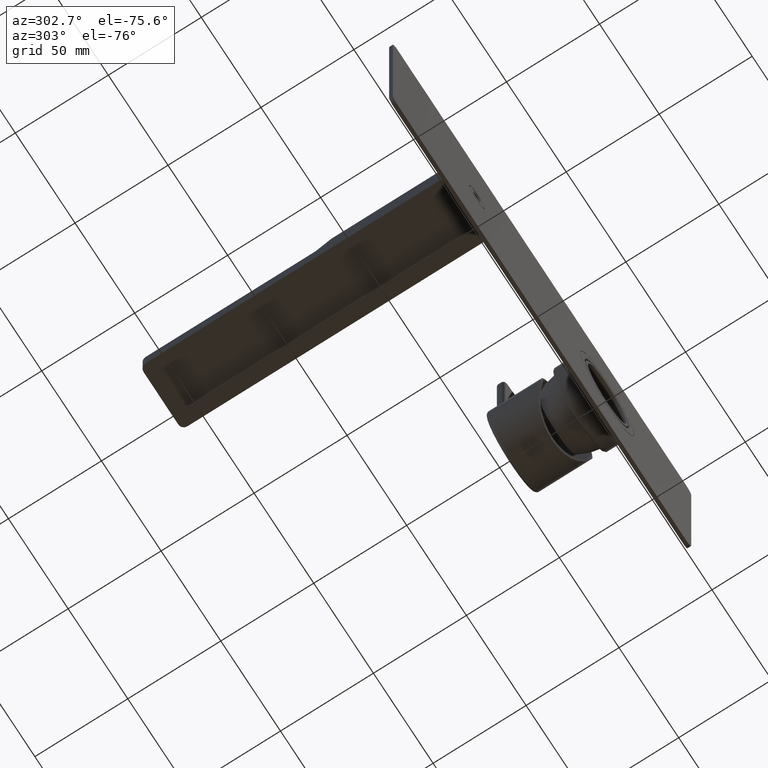
[diagram: clean part render]
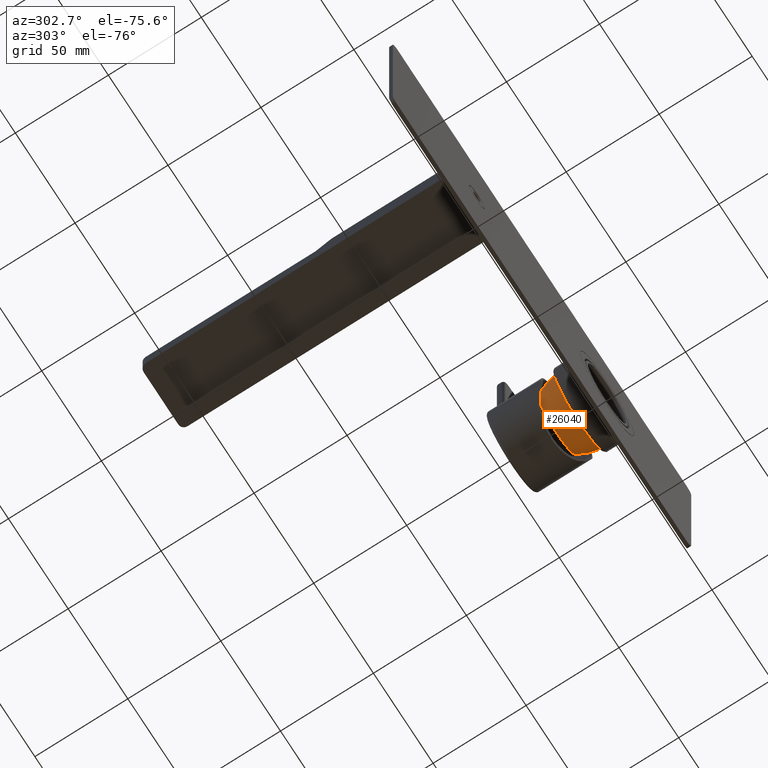
[diagram: same view with one face highlighted and labeled with its STEP entity id]
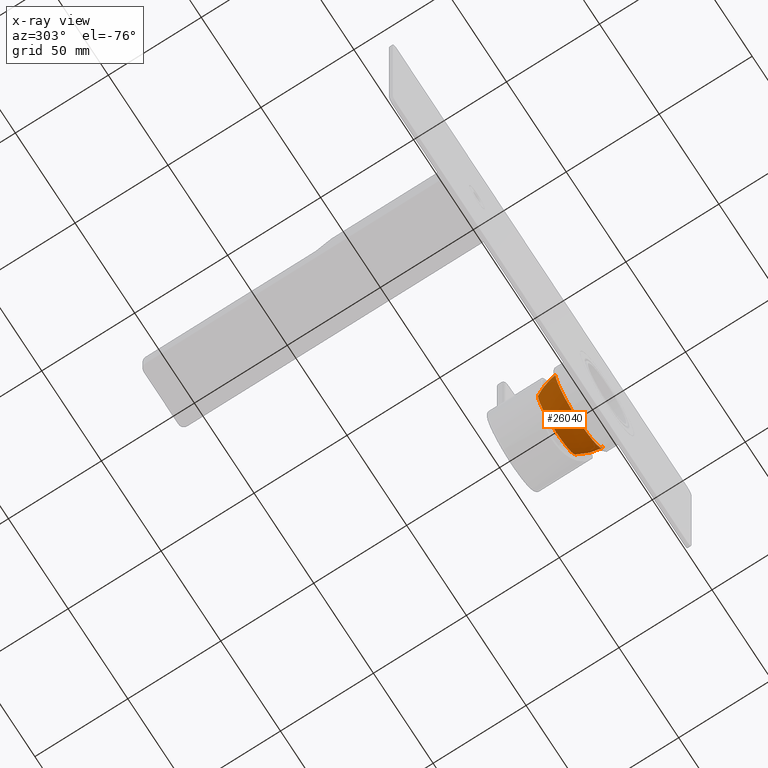
[diagram: x-ray of the same camera — body ghosted, the highlighted face saturated]
A machine part, auxiliary view. The second image highlights one B-rep face of the part: STEP entity #26040.
The next image is the same camera in x-ray: the body ghosted, the highlighted face saturated — about 0% of this face is hidden behind the body in this view.
In plain terms, the highlighted face is a freeform B-spline surface patch.
Its self-contained STEP definition (entity closure, byte-faithful):
#6662=CARTESIAN_POINT('',(1.09E2,6.3E1,0.E0));
#6663=DIRECTION('',(0.E0,-1.E0,0.E0));
#6664=DIRECTION('',(-1.E0,0.E0,0.E0));
#6665=AXIS2_PLACEMENT_3D('',#6662,#6663,#6664);
#6671=CARTESIAN_POINT('',(9.901791193219E1,5.983037517768E1,0.E0));
#6672=DIRECTION('',(0.E0,0.E0,1.E0));
#6673=DIRECTION('',(9.944029355938E-1,1.056541607441E-1,0.E0));
#6674=AXIS2_PLACEMENT_3D('',#6671,#6672,#6673);
#6676=CARTESIAN_POINT('',(1.189820880678E2,5.983037517768E1,0.E0));
#6677=DIRECTION('',(0.E0,0.E0,-1.E0));
#6678=DIRECTION('',(-9.944029355938E-1,1.056541607441E-1,0.E0));
#6679=AXIS2_PLACEMENT_3D('',#6676,#6677,#6678);
#6681=CARTESIAN_POINT('',(1.09E2,7.5E1,0.E0));
#6682=DIRECTION('',(0.E0,1.E0,0.E0));
#6683=DIRECTION('',(1.E0,0.E0,0.E0));
#6684=AXIS2_PLACEMENT_3D('',#6681,#6682,#6683);
#17084=CARTESIAN_POINT('',(1.249E2,7.5E1,0.E0));
#17085=CARTESIAN_POINT('',(9.31E1,7.5E1,0.E0));
#17086=VERTEX_POINT('',#17084);
#17087=VERTEX_POINT('',#17085);
#17088=CARTESIAN_POINT('',(1.2885E2,6.3E1,0.E0));
#17089=CARTESIAN_POINT('',(8.915E1,6.3E1,0.E0));
#17090=VERTEX_POINT('',#17088);
#17091=VERTEX_POINT('',#17089);
#26004=CARTESIAN_POINT('',(9.326077537360E1,7.521908054957E1,
9.902280802003E-1));
#26005=CARTESIAN_POINT('',(9.098324663156E1,7.140018433348E1,1.133518043166E0));
#26006=CARTESIAN_POINT('',(8.959502027042E1,6.717444927042E1,1.220857842750E0));
#26007=CARTESIAN_POINT('',(8.916339809385E1,6.274674079127E1,1.248013208369E0));
#26008=CARTESIAN_POINT('',(9.265139040204E1,7.521908054957E1,
-8.695668677437E0));
#26009=CARTESIAN_POINT('',(9.028568121779E1,7.140018433348E1,
-9.953966707625E0));
#26010=CARTESIAN_POINT('',(8.884370606649E1,6.717444927042E1,
-1.072093946342E1));
#26011=CARTESIAN_POINT('',(8.839537251601E1,6.274674079127E1,
-1.095940377983E1));
#26012=CARTESIAN_POINT('',(9.929495254812E1,7.521908054957E1,
-1.577034379749E1));
#26013=CARTESIAN_POINT('',(9.789059337293E1,7.140018433348E1,
-1.805237560802E1));
#26014=CARTESIAN_POINT('',(9.703459169377E1,6.717444927042E1,
-1.944334673295E1));
#26015=CARTESIAN_POINT('',(9.676844683567E1,6.274674079127E1,
-1.987582230126E1));
#26016=CARTESIAN_POINT('',(1.09E2,7.521908054957E1,-1.577034379749E1));
#26017=CARTESIAN_POINT('',(1.09E2,7.140018433348E1,-1.805237560802E1));
#26018=CARTESIAN_POINT('',(1.09E2,6.717444927042E1,-1.944334673295E1));
#26019=CARTESIAN_POINT('',(1.09E2,6.274674079127E1,-1.987582230126E1));
#26020=CARTESIAN_POINT('',(1.187050474519E2,7.521908054957E1,
-1.577034379749E1));
#26021=CARTESIAN_POINT('',(1.201094066271E2,7.140018433348E1,
-1.805237560802E1));
#26022=CARTESIAN_POINT('',(1.209654083062E2,6.717444927042E1,
-1.944334673295E1));
#26023=CARTESIAN_POINT('',(1.212315531643E2,6.274674079127E1,
-1.987582230126E1));
#26024=CARTESIAN_POINT('',(1.253486095980E2,7.521908054957E1,
-8.695668677437E0));
#26025=CARTESIAN_POINT('',(1.277143187822E2,7.140018433348E1,
-9.953966707625E0));
#26026=CARTESIAN_POINT('',(1.291562939335E2,6.717444927042E1,
-1.072093946342E1));
#26027=CARTESIAN_POINT('',(1.296046274840E2,6.274674079127E1,
-1.095940377983E1));
#26028=CARTESIAN_POINT('',(1.247392246264E2,7.521908054957E1,
9.902280802003E-1));
#26029=CARTESIAN_POINT('',(1.270167533684E2,7.140018433348E1,1.133518043166E0));
#26030=CARTESIAN_POINT('',(1.284049797296E2,6.717444927042E1,1.220857842750E0));
#26031=CARTESIAN_POINT('',(1.288366019062E2,6.274674079127E1,1.248013208369E0));
#26032=(BOUNDED_SURFACE()B_SPLINE_SURFACE(3,3,((#26004,#26005,#26006,#26007),(
#26008,#26009,#26010,#26011),(#26012,#26013,#26014,#26015),(#26016,#26017,
#26018,#26019),(#26020,#26021,#26022,#26023),(#26024,#26025,#26026,#26027),(
#26028,#26029,#26030,#26031)),.UNSPECIFIED.,.F.,.F.,.F.)B_SPLINE_SURFACE_WITH_KNOTS((4,3,4),(4,4),(0.E0,1.E0,2.E0),(0.E0,1.E0),.UNSPECIFIED.)GEOMETRIC_REPRESENTATION_ITEM()RATIONAL_B_SPLINE_SURFACE(((1.201829027942E0,1.182407300678E0,
1.182407300678E0,1.201829027942E0),(9.490820645799E-1,9.337447640315E-1,
9.337447640315E-1,9.490820645799E-1),(9.490820645799E-1,9.337447640315E-1,
9.337447640315E-1,9.490820645799E-1),(1.201829027942E0,1.182407300678E0,
1.182407300678E0,1.201829027942E0),(9.490820645799E-1,9.337447640315E-1,
9.337447640315E-1,9.490820645799E-1),(9.490820645799E-1,9.337447640315E-1,
9.337447640315E-1,9.490820645799E-1),(1.201829027942E0,1.182407300678E0,
1.182407300678E0,1.201829027942E0)))REPRESENTATION_ITEM('')SURFACE());
#26033=ORIENTED_EDGE('',*,*,#25927,.T.);
#26034=ORIENTED_EDGE('',*,*,#25992,.T.);
#26036=ORIENTED_EDGE('',*,*,#26035,.T.);
#26037=ORIENTED_EDGE('',*,*,#25988,.F.);
#26038=EDGE_LOOP('',(#26033,#26034,#26036,#26037));
#26039=FACE_OUTER_BOUND('',#26038,.F.);
#26040=ADVANCED_FACE('',(#26039),#26032,.T.);
#6666=CIRCLE('',#6665,1.985E1);
#6675=CIRCLE('',#6674,3.E1);
#6680=CIRCLE('',#6679,3.E1);
#6685=CIRCLE('',#6684,1.59E1);
#25927=EDGE_CURVE('',#17091,#17090,#6666,.T.);
#25988=EDGE_CURVE('',#17091,#17087,#6680,.T.);
#25992=EDGE_CURVE('',#17090,#17086,#6675,.T.);
#26035=EDGE_CURVE('',#17086,#17087,#6685,.T.);